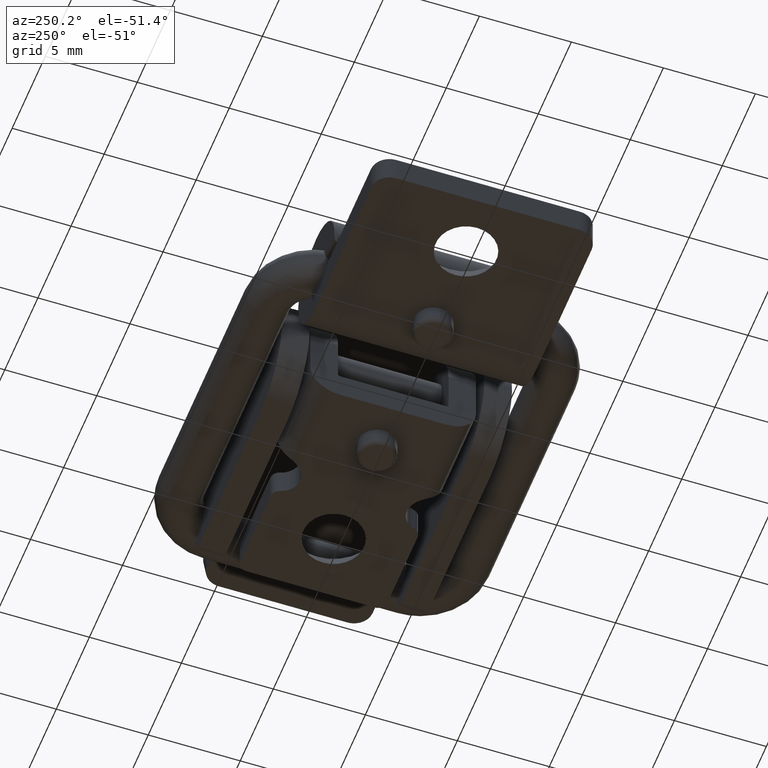
[diagram: clean part render]
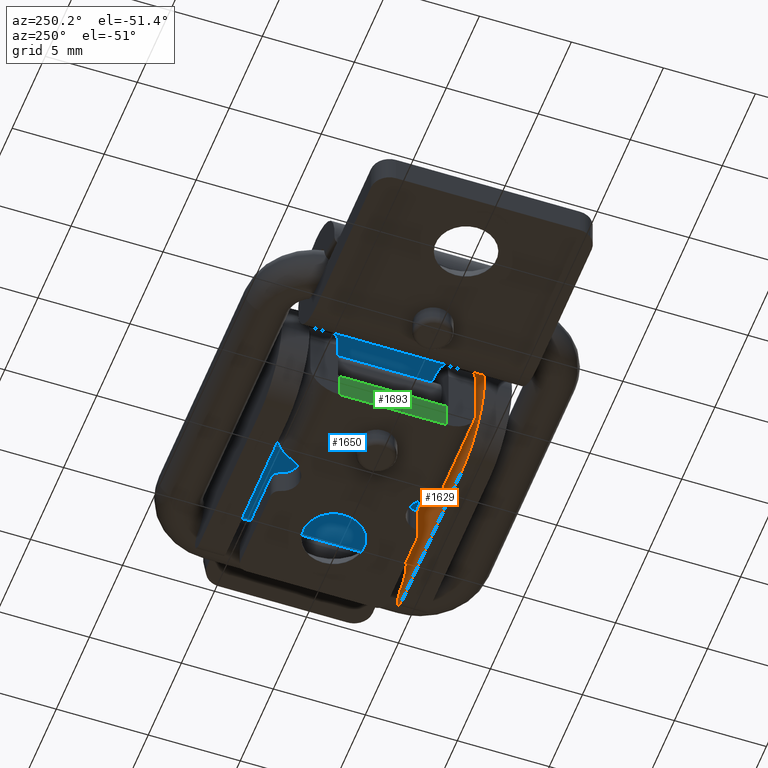
[diagram: same view with three faces highlighted in distinct colors, each labeled with its STEP entity id]
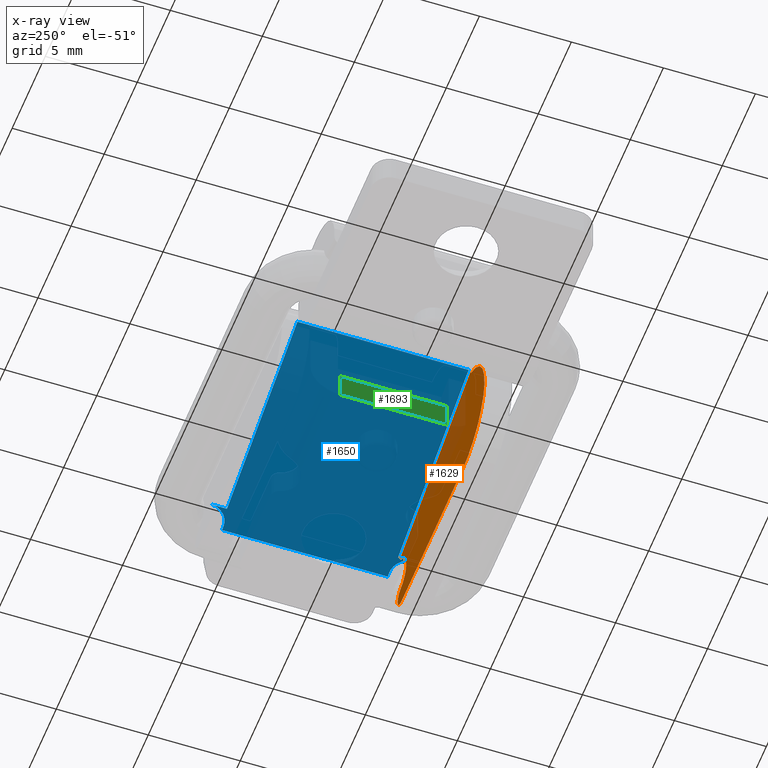
[diagram: x-ray of the same camera — body ghosted, the three highlighted faces saturated]
A machine part, auxiliary view with three faces highlighted in distinct colors.
The next image is the same camera in x-ray (body ghosted, the three faces saturated) — at least one of them is partly hidden behind the body in this view.
Their STEP definitions:

[orange] entity #1629 — the highlighted planar face has unit normal (0, -1, -0).
#86=LINE('',#2614,#210);
#94=LINE('',#2644,#218);
#95=LINE('',#2648,#219);
#96=LINE('',#2649,#220);
#210=VECTOR('',#2056,0.173474972221287);
#218=VECTOR('',#2086,9.17734519377148);
#219=VECTOR('',#2089,0.203097395817931);
#220=VECTOR('',#2090,11.);
#365=PLANE('',#1774);
#464=FACE_OUTER_BOUND('',#582,.T.);
#582=EDGE_LOOP('',(#1262,#1263,#1264,#1265,#1266,#1267,#1268,#1269));
#693=CIRCLE('',#1763,0.999999999999999);
#695=CIRCLE('',#1767,2.);
#700=CIRCLE('',#1775,0.6);
#701=CIRCLE('',#1776,3.32903819967745);
#801=VERTEX_POINT('',#2607);
#802=VERTEX_POINT('',#2609);
#803=VERTEX_POINT('',#2613);
#806=VERTEX_POINT('',#2621);
#813=VERTEX_POINT('',#2641);
#814=VERTEX_POINT('',#2643);
#815=VERTEX_POINT('',#2645);
#816=VERTEX_POINT('',#2647);
#965=EDGE_CURVE('',#801,#802,#693,.T.);
#967=EDGE_CURVE('',#803,#802,#86,.T.);
#971=EDGE_CURVE('',#803,#806,#695,.T.);
#981=EDGE_CURVE('',#813,#801,#700,.T.);
#982=EDGE_CURVE('',#814,#813,#94,.T.);
#983=EDGE_CURVE('',#815,#814,#701,.T.);
#984=EDGE_CURVE('',#816,#815,#95,.T.);
#985=EDGE_CURVE('',#816,#806,#96,.T.);
#1262=ORIENTED_EDGE('',*,*,#967,.T.);
#1263=ORIENTED_EDGE('',*,*,#965,.F.);
#1264=ORIENTED_EDGE('',*,*,#981,.F.);
#1265=ORIENTED_EDGE('',*,*,#982,.F.);
#1266=ORIENTED_EDGE('',*,*,#983,.F.);
#1267=ORIENTED_EDGE('',*,*,#984,.F.);
#1268=ORIENTED_EDGE('',*,*,#985,.T.);
#1269=ORIENTED_EDGE('',*,*,#971,.F.);
#1629=ADVANCED_FACE('',(#464),#365,.F.);
#1763=AXIS2_PLACEMENT_3D('',#2610,#2051,#2052);
#1767=AXIS2_PLACEMENT_3D('',#2622,#2063,#2064);
#1774=AXIS2_PLACEMENT_3D('',#2640,#2082,#2083);
#1775=AXIS2_PLACEMENT_3D('',#2642,#2084,#2085);
#1776=AXIS2_PLACEMENT_3D('',#2646,#2087,#2088);
#2051=DIRECTION('center_axis',(-1.4130111222502E-15,1.,-2.22044604925029E-16));
#2052=DIRECTION('ref_axis',(1.,1.66533453693774E-15,-2.19269047363469E-14));
#2056=DIRECTION('',(-2.18658249192015E-14,-2.2204460492506E-16,-1.));
#2063=DIRECTION('center_axis',(-1.4130111222502E-15,1.,-2.22044604925029E-16));
#2064=DIRECTION('ref_axis',(-0.745343647378048,-8.32667268468867E-16,0.666680468675353));
#2082=DIRECTION('center_axis',(1.4130111222502E-15,-1.,2.22044604925029E-16));
#2083=DIRECTION('ref_axis',(1.,1.4210854715202E-15,-1.4210854715202E-15));
#2084=DIRECTION('center_axis',(1.4130111222502E-15,-1.,2.22044604925029E-16));
#2085=DIRECTION('ref_axis',(1.,1.4130111222502E-15,-1.4130111222502E-15));
#2086=DIRECTION('',(0.965925826289069,1.42233330843203E-15,0.258819045102518));
#2087=DIRECTION('center_axis',(1.4130111222502E-15,-1.,2.22044604925029E-16));
#2088=DIRECTION('ref_axis',(-0.609496820995934,-6.85191375046101E-16,0.792788512275405));
#2089=DIRECTION('',(-1.80663564916277E-14,-2.22044604925055E-16,-1.));
#2090=DIRECTION('',(1.,1.4130111222502E-15,0.));
#2607=CARTESIAN_POINT('',(5.45900773553352,-4.75309739581792,-2.60449933847572));
#2609=CARTESIAN_POINT('',(4.39068729475609,-4.75309739581792,-1.60683590957195));
#2610=CARTESIAN_POINT('Origin',(5.39068729475608,-4.75309739581792,-1.60683590957197));
#2613=CARTESIAN_POINT('',(4.39068729475609,-4.75309739581792,-1.43336093735066));
#2614=CARTESIAN_POINT('',(4.39068729475606,-4.75309739581792,-2.96640657251745));
#2621=CARTESIAN_POINT('',(4.89999999999999,-4.75309739581792,-0.1));
#2622=CARTESIAN_POINT('Origin',(6.39068729475609,-4.75309739581792,-1.43336093735071));
#2640=CARTESIAN_POINT('Origin',(5.47863206530747,-4.75309739581792,-3.23094463047445));
#2641=CARTESIAN_POINT('',(5.65529142706148,-4.75309739581792,-3.7826528915914));
#2642=CARTESIAN_POINT('Origin',(5.49999999999998,-4.75309739581792,-3.20309739581796));
#2643=CARTESIAN_POINT('',(-3.20934331237225,-4.75309739581793,-6.15792461121952));
#2644=CARTESIAN_POINT('',(-3.20934331237225,-4.75309739581793,-6.15792461121952));
#2645=CARTESIAN_POINT('',(-6.10000000000001,-4.75309739581793,-0.303097395817931));
#2646=CARTESIAN_POINT('Origin',(-4.07096180032257,-4.75309739581793,-2.94232063744821));
#2647=CARTESIAN_POINT('',(-6.1,-4.75309739581793,-0.1));
#2648=CARTESIAN_POINT('',(-6.09999999999999,-4.75309739581793,0.496902604182061));
#2649=CARTESIAN_POINT('',(5.18931603265373,-4.75309739581792,-0.100000000000001));

[blue] entity #1650 — the highlighted planar face has unit normal (0.2547, -0, 0.967).
#104=LINE('',#2717,#228);
#107=LINE('',#2724,#231);
#109=LINE('',#2746,#233);
#112=LINE('',#2773,#236);
#114=LINE('',#2778,#238);
#120=LINE('',#2794,#244);
#127=LINE('',#2813,#251);
#128=LINE('',#2814,#252);
#228=VECTOR('',#2114,0.200000000000009);
#231=VECTOR('',#2121,9.);
#233=VECTOR('',#2131,0.846902604182065);
#236=VECTOR('',#2146,0.846902604182067);
#238=VECTOR('',#2154,0.200000000000019);
#244=VECTOR('',#2172,10.9999999999998);
#251=VECTOR('',#2195,11.);
#252=VECTOR('',#2196,9.30619479163587);
#376=PLANE('',#1813);
#485=FACE_OUTER_BOUND('',#603,.T.);
#603=EDGE_LOOP('',(#1371,#1372,#1373,#1374,#1375,#1376,#1377,#1378,#1379,
#1380));
#707=CIRCLE('',#1789,0.999999999999999);
#710=CIRCLE('',#1794,1.);
#827=VERTEX_POINT('',#2714);
#828=VERTEX_POINT('',#2716);
#830=VERTEX_POINT('',#2722);
#832=VERTEX_POINT('',#2728);
#834=VERTEX_POINT('',#2745);
#835=VERTEX_POINT('',#2750);
#836=VERTEX_POINT('',#2751);
#840=VERTEX_POINT('',#2772);
#844=VERTEX_POINT('',#2789);
#848=VERTEX_POINT('',#2812);
#1000=EDGE_CURVE('',#827,#828,#104,.T.);
#1004=EDGE_CURVE('',#830,#827,#107,.T.);
#1006=EDGE_CURVE('',#832,#828,#707,.F.);
#1009=EDGE_CURVE('',#832,#834,#109,.T.);
#1012=EDGE_CURVE('',#835,#836,#710,.T.);
#1017=EDGE_CURVE('',#840,#835,#112,.T.);
#1021=EDGE_CURVE('',#836,#830,#114,.T.);
#1029=EDGE_CURVE('',#844,#834,#120,.T.);
#1038=EDGE_CURVE('',#840,#848,#127,.T.);
#1039=EDGE_CURVE('',#844,#848,#128,.T.);
#1371=ORIENTED_EDGE('',*,*,#1038,.T.);
#1372=ORIENTED_EDGE('',*,*,#1039,.F.);
#1373=ORIENTED_EDGE('',*,*,#1029,.T.);
#1374=ORIENTED_EDGE('',*,*,#1009,.F.);
#1375=ORIENTED_EDGE('',*,*,#1006,.T.);
#1376=ORIENTED_EDGE('',*,*,#1000,.F.);
#1377=ORIENTED_EDGE('',*,*,#1004,.F.);
#1378=ORIENTED_EDGE('',*,*,#1021,.F.);
#1379=ORIENTED_EDGE('',*,*,#1012,.F.);
#1380=ORIENTED_EDGE('',*,*,#1017,.F.);
#1650=ADVANCED_FACE('',(#485),#376,.F.);
#1789=AXIS2_PLACEMENT_3D('',#2729,#2126,#2127);
#1794=AXIS2_PLACEMENT_3D('',#2752,#2138,#2139);
#1813=AXIS2_PLACEMENT_3D('',#2811,#2193,#2194);
#2114=DIRECTION('',(-1.,0.,0.));
#2121=DIRECTION('',(6.34413156928661E-16,1.,0.));
#2126=DIRECTION('center_axis',(0.,0.,-1.));
#2127=DIRECTION('ref_axis',(-1.,1.11022302462516E-15,5.55111512312579E-16));
#2131=DIRECTION('',(-6.48109905916855E-16,-1.,0.));
#2138=DIRECTION('center_axis',(0.,0.,-1.));
#2139=DIRECTION('ref_axis',(-1.,1.55431223447522E-14,5.55111512312578E-16));
#2146=DIRECTION('',(-1.59972948801173E-14,-1.,0.));
#2154=DIRECTION('',(1.,0.,0.));
#2172=DIRECTION('',(1.,-2.01858731750029E-16,0.));
#2193=DIRECTION('center_axis',(0.,0.,1.));
#2194=DIRECTION('ref_axis',(1.,0.,0.));
#2195=DIRECTION('',(-1.,-1.4130111222502E-15,0.));
#2196=DIRECTION('',(-1.66533453693775E-14,-1.,0.));
#2714=CARTESIAN_POINT('',(6.1,4.5,-2.77555756156289E-16));
#2716=CARTESIAN_POINT('',(5.89999999999999,4.5,0.));
#2717=CARTESIAN_POINT('',(4.89999999999999,4.5,0.));
#2722=CARTESIAN_POINT('',(6.1,-4.5,-2.77555756156289E-16));
#2724=CARTESIAN_POINT('',(6.1,-5.25,0.));
#2728=CARTESIAN_POINT('',(4.89999999999999,5.5,0.));
#2729=CARTESIAN_POINT('Origin',(5.89999999999999,5.5,0.));
#2745=CARTESIAN_POINT('',(4.89999999999999,4.65309739581794,0.));
#2746=CARTESIAN_POINT('',(4.89999999999998,-2.16237491941928,0.));
#2750=CARTESIAN_POINT('',(4.89999999999998,-5.49999999999998,0.));
#2751=CARTESIAN_POINT('',(5.89999999999998,-4.5,0.));
#2752=CARTESIAN_POINT('Origin',(5.89999999999998,-5.5,0.));
#2772=CARTESIAN_POINT('',(4.89999999999999,-4.65309739581792,0.));
#2773=CARTESIAN_POINT('',(4.89999999999996,-6.8154723152372,0.));
#2778=CARTESIAN_POINT('',(6.1,-4.5,0.));
#2789=CARTESIAN_POINT('',(-6.09999999999983,4.65309739581794,0.));
#2794=CARTESIAN_POINT('',(5.18931603265373,4.65309739581794,0.));
#2811=CARTESIAN_POINT('Origin',(5.47863206530747,-8.97784723465649,0.));
#2812=CARTESIAN_POINT('',(-6.09999999999998,-4.65309739581793,0.));
#2813=CARTESIAN_POINT('',(-0.310683967346257,-4.65309739581793,0.));
#2814=CARTESIAN_POINT('',(-6.09999999999999,-5.24999999999999,0.));

[green] entity #1693 — the highlighted planar face has unit normal (-1, -0, 0).
#145=LINE('',#2894,#269);
#153=LINE('',#2920,#277);
#163=LINE('',#2982,#287);
#176=LINE('',#3023,#300);
#269=VECTOR('',#2289,5.80619479163588);
#277=VECTOR('',#2313,5.80619479163588);
#287=VECTOR('',#2351,1.5);
#300=VECTOR('',#2402,1.5);
#398=PLANE('',#1893);
#528=FACE_OUTER_BOUND('',#657,.T.);
#657=EDGE_LOOP('',(#1562,#1563,#1564,#1565));
#872=VERTEX_POINT('',#2891);
#873=VERTEX_POINT('',#2893);
#882=VERTEX_POINT('',#2917);
#883=VERTEX_POINT('',#2919);
#1073=EDGE_CURVE('',#873,#872,#145,.T.);
#1086=EDGE_CURVE('',#883,#882,#153,.T.);
#1105=EDGE_CURVE('',#882,#873,#163,.T.);
#1125=EDGE_CURVE('',#872,#883,#176,.T.);
#1562=ORIENTED_EDGE('',*,*,#1105,.T.);
#1563=ORIENTED_EDGE('',*,*,#1073,.T.);
#1564=ORIENTED_EDGE('',*,*,#1125,.T.);
#1565=ORIENTED_EDGE('',*,*,#1086,.T.);
#1693=ADVANCED_FACE('',(#528),#398,.T.);
#1893=AXIS2_PLACEMENT_3D('',#3024,#2403,#2404);
#2289=DIRECTION('',(7.40148683083437E-16,1.,0.));
#2313=DIRECTION('',(-7.40148683083437E-16,-1.,0.));
#2351=DIRECTION('',(0.,0.,1.));
#2402=DIRECTION('',(0.,0.,-1.));
#2403=DIRECTION('center_axis',(-1.,7.40148683083437E-16,0.));
#2404=DIRECTION('ref_axis',(0.,0.,1.));
#2891=CARTESIAN_POINT('',(-6.25,2.90309739581793,1.5));
#2893=CARTESIAN_POINT('',(-6.25000000000001,-2.90309739581795,1.5));
#2894=CARTESIAN_POINT('',(-6.25,6.5,1.5));
#2917=CARTESIAN_POINT('',(-6.25000000000001,-2.90309739581795,0.));
#2919=CARTESIAN_POINT('',(-6.25,2.90309739581793,0.));
#2920=CARTESIAN_POINT('',(-6.25,6.5,0.));
#2982=CARTESIAN_POINT('',(-6.25000000000001,-2.90309739581795,0.));
#3023=CARTESIAN_POINT('',(-6.25,2.90309739581793,0.));
#3024=CARTESIAN_POINT('Origin',(-6.25,3.49999999999999,0.));